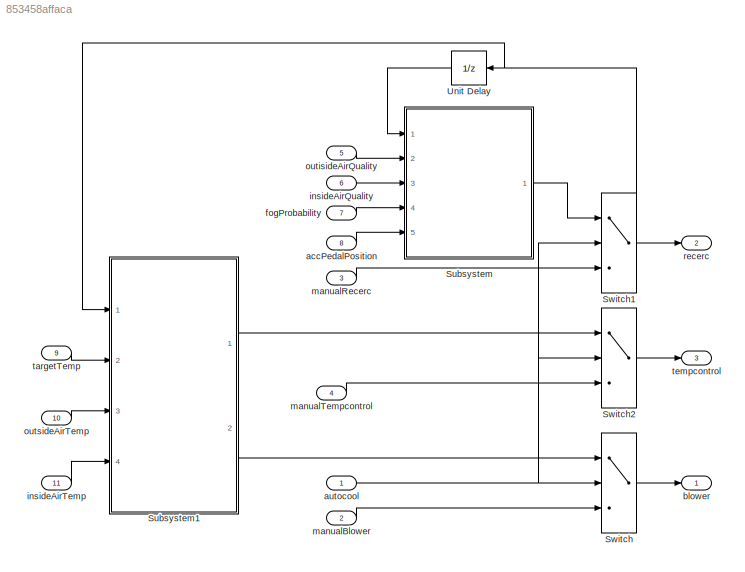
MODEL slx_853458affaca
KIND model
CONFIG AbsTol = auto
CONFIG EnableMultiTasking = off
CONFIG FixedStep = auto
CONFIG MaxStep = auto
CONFIG MinStep = auto
CONFIG RelTol = 1e-3
CONFIG SampleTimeConstraint = Unconstrained
CONFIG Solver = FixedStepAuto
CONFIG SolverName = FixedStepAuto
CONFIG StartTime = 0.0
CONFIG StopTime = 100
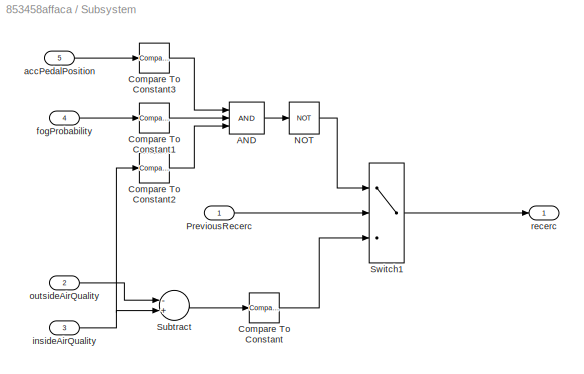
BLOCK [SubSystem] Subsystem
  Ports = [5, 1]
  RequestExecContextInheritance = off
BLOCK [Logic] Subsystem/AND
  AllPortsSameDT = off
  Inputs = 3
  OutDataTypeStr = boolean
  Ports = [3, 1]
BLOCK [Reference] Subsystem/Compare To Constant  REF=simulink/Logic and Bit
Operations/Compare
To Constant
  Ports = [1, 1]
  SourceBlock = simulink/Logic and Bit\nOperations/Compare\nTo Constant
  SourceProductBaseCode = SL
  SourceProductName = Simulink
  SourceType = Compare To Constant
BLOCK [Reference] Subsystem/Compare To Constant1  REF=simulink/Logic and Bit
Operations/Compare
To Constant
  Ports = [1, 1]
  SourceBlock = simulink/Logic and Bit\nOperations/Compare\nTo Constant
  SourceProductBaseCode = SL
  SourceProductName = Simulink
  SourceType = Compare To Constant
BLOCK [Reference] Subsystem/Compare To Constant2  REF=simulink/Logic and Bit
Operations/Compare
To Constant
  Ports = [1, 1]
  SourceBlock = simulink/Logic and Bit\nOperations/Compare\nTo Constant
  SourceProductBaseCode = SL
  SourceProductName = Simulink
  SourceType = Compare To Constant
BLOCK [Reference] Subsystem/Compare To Constant3  REF=simulink/Logic and Bit
Operations/Compare
To Constant
  Ports = [1, 1]
  SourceBlock = simulink/Logic and Bit\nOperations/Compare\nTo Constant
  SourceProductBaseCode = SL
  SourceProductName = Simulink
  SourceType = Compare To Constant
BLOCK [Logic] Subsystem/NOT
  AllPortsSameDT = off
  Operator = NOT
  OutDataTypeStr = boolean
  Ports = [1, 1]
BLOCK [Inport] Subsystem/PreviousRecerc
  IconDisplay = Port number
BLOCK [Sum] Subsystem/Subtract
  InputSameDT = off
  Inputs = -+
  OutDataTypeStr = Inherit: Inherit via internal rule
  Ports = [2, 1]
  SaturateOnIntegerOverflow = off
BLOCK [Switch] Subsystem/Switch1
  Criteria = u2 ~= 0
  InputSameDT = off
  SaturateOnIntegerOverflow = off
BLOCK [Inport] Subsystem/accPedalPosition
  IconDisplay = Port number
  Port = 5
BLOCK [Inport] Subsystem/fogProbability
  IconDisplay = Port number
  Port = 4
BLOCK [Inport] Subsystem/insideAirQuality
  IconDisplay = Port number
  Port = 3
BLOCK [Inport] Subsystem/outsideAirQuality
  IconDisplay = Port number
  Port = 2
BLOCK [Outport] Subsystem/recerc
  IconDisplay = Port number
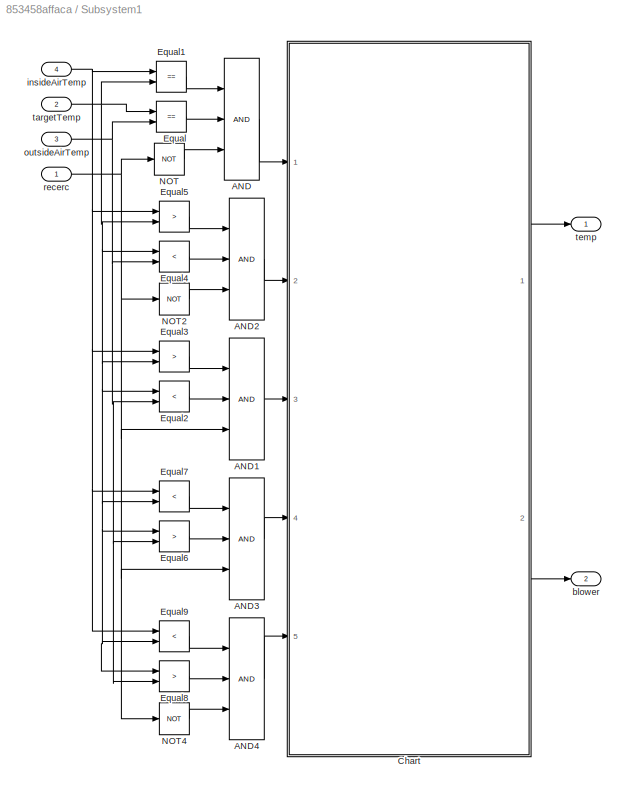
BLOCK [SubSystem] Subsystem1
  Ports = [4, 2]
  RequestExecContextInheritance = off
BLOCK [Logic] Subsystem1/AND
  AllPortsSameDT = off
  Inputs = 3
  OutDataTypeStr = boolean
  Ports = [3, 1]
BLOCK [Logic] Subsystem1/AND1
  AllPortsSameDT = off
  Inputs = 3
  OutDataTypeStr = boolean
  Ports = [3, 1]
BLOCK [Logic] Subsystem1/AND2
  AllPortsSameDT = off
  Inputs = 3
  OutDataTypeStr = boolean
  Ports = [3, 1]
BLOCK [Logic] Subsystem1/AND3
  AllPortsSameDT = off
  Inputs = 3
  OutDataTypeStr = boolean
  Ports = [3, 1]
BLOCK [Logic] Subsystem1/AND4
  AllPortsSameDT = off
  Inputs = 3
  OutDataTypeStr = boolean
  Ports = [3, 1]
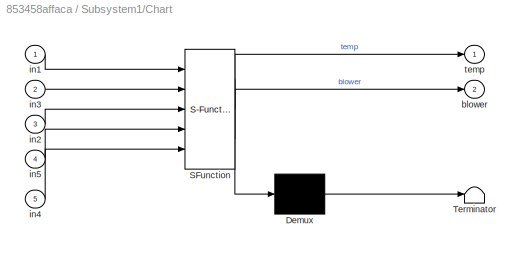
BLOCK [SubSystem] Subsystem1/Chart
  BlockKeywords = __PRM__SERIALIZED__DATA__:Stateflow Chart,Stateflow Diagram
  ErrorFcn = Stateflow.Translate.translate
  PermitHierarchicalResolution = ExplicitOnly
  Ports = [5, 2]
  RequestExecContextInheritance = off
  SFBlockType = Chart
  TreatAsAtomicUnit = on
BLOCK [Demux] Subsystem1/Chart/ Demux 
  Outputs = 1
  Ports = [1, 1]
BLOCK [S-Function] Subsystem1/Chart/ SFunction 
  EnableBusSupport = on
  FunctionName = sf_sfun
  PortCounts = [5 3]
  Ports = [5, 3]
  SFcnIsStateOwnerBlock = off
  SFunctionDeploymentMode = off
  Tag = Stateflow S-Function req17 3
BLOCK [Terminator] Subsystem1/Chart/ Terminator 
BLOCK [Outport] Subsystem1/Chart/blower
  IconDisplay = Port number
  Port = 2
BLOCK [Inport] Subsystem1/Chart/in1
  IconDisplay = Port number
BLOCK [Inport] Subsystem1/Chart/in2
  IconDisplay = Port number
  Port = 3
BLOCK [Inport] Subsystem1/Chart/in3
  IconDisplay = Port number
  Port = 2
BLOCK [Inport] Subsystem1/Chart/in4
  IconDisplay = Port number
  Port = 5
BLOCK [Inport] Subsystem1/Chart/in5
  IconDisplay = Port number
  Port = 4
BLOCK [Outport] Subsystem1/Chart/temp
  IconDisplay = Port number
BLOCK [RelationalOperator] Subsystem1/Equal
  InputSameDT = off
  Operator = ==
  OutDataTypeStr = boolean
  Ports = [2, 1]
  RndMeth = Simplest
BLOCK [RelationalOperator] Subsystem1/Equal1
  InputSameDT = off
  Operator = ==
  OutDataTypeStr = boolean
  Ports = [2, 1]
  RndMeth = Simplest
BLOCK [RelationalOperator] Subsystem1/Equal2
  InputSameDT = off
  Operator = <
  OutDataTypeStr = boolean
  Ports = [2, 1]
  RndMeth = Simplest
BLOCK [RelationalOperator] Subsystem1/Equal3
  InputSameDT = off
  Operator = >
  OutDataTypeStr = boolean
  Ports = [2, 1]
  RndMeth = Simplest
BLOCK [RelationalOperator] Subsystem1/Equal4
  InputSameDT = off
  Operator = <
  OutDataTypeStr = boolean
  Ports = [2, 1]
  RndMeth = Simplest
BLOCK [RelationalOperator] Subsystem1/Equal5
  InputSameDT = off
  Operator = >
  OutDataTypeStr = boolean
  Ports = [2, 1]
  RndMeth = Simplest
BLOCK [RelationalOperator] Subsystem1/Equal6
  InputSameDT = off
  Operator = >
  OutDataTypeStr = boolean
  Ports = [2, 1]
  RndMeth = Simplest
BLOCK [RelationalOperator] Subsystem1/Equal7
  InputSameDT = off
  Operator = <
  OutDataTypeStr = boolean
  Ports = [2, 1]
  RndMeth = Simplest
BLOCK [RelationalOperator] Subsystem1/Equal8
  InputSameDT = off
  Operator = >
  OutDataTypeStr = boolean
  Ports = [2, 1]
  RndMeth = Simplest
BLOCK [RelationalOperator] Subsystem1/Equal9
  InputSameDT = off
  Operator = <
  OutDataTypeStr = boolean
  Ports = [2, 1]
  RndMeth = Simplest
BLOCK [Logic] Subsystem1/NOT
  AllPortsSameDT = off
  Operator = NOT
  OutDataTypeStr = boolean
  Ports = [1, 1]
BLOCK [Logic] Subsystem1/NOT2
  AllPortsSameDT = off
  Operator = NOT
  OutDataTypeStr = boolean
  Ports = [1, 1]
BLOCK [Logic] Subsystem1/NOT4
  AllPortsSameDT = off
  Operator = NOT
  OutDataTypeStr = boolean
  Ports = [1, 1]
BLOCK [Outport] Subsystem1/blower
  IconDisplay = Port number
  Port = 2
BLOCK [Inport] Subsystem1/insideAirTemp
  IconDisplay = Port number
  Port = 4
BLOCK [Inport] Subsystem1/outsideAirTemp
  IconDisplay = Port number
  Port = 3
BLOCK [Inport] Subsystem1/recerc
  IconDisplay = Port number
BLOCK [Inport] Subsystem1/targetTemp
  IconDisplay = Port number
  Port = 2
BLOCK [Outport] Subsystem1/temp
  IconDisplay = Port number
BLOCK [Switch] Switch
  Criteria = u2 ~= 0
  InputSameDT = off
  SaturateOnIntegerOverflow = off
BLOCK [Switch] Switch1
  Criteria = u2 ~= 0
  InputSameDT = off
  SaturateOnIntegerOverflow = off
BLOCK [Switch] Switch2
  Criteria = u2 ~= 0
  InputSameDT = off
  SaturateOnIntegerOverflow = off
BLOCK [UnitDelay] Unit Delay
  HasFrameUpgradeWarning = on
  SampleTime = -1
BLOCK [Inport] accPedalPosition
  IconDisplay = Port number
  Port = 8
BLOCK [Inport] autocool
  IconDisplay = Port number
BLOCK [Outport] blower
  IconDisplay = Port number
BLOCK [Inport] fogProbability
  IconDisplay = Port number
  Port = 7
BLOCK [Inport] insideAirQuality
  IconDisplay = Port number
  Port = 6
BLOCK [Inport] insideAirTemp
  IconDisplay = Port number
  Port = 11
BLOCK [Inport] manualBlower
  IconDisplay = Port number
  Port = 2
BLOCK [Inport] manualRecerc
  IconDisplay = Port number
  Port = 3
BLOCK [Inport] manualTempcontrol
  IconDisplay = Port number
  Port = 4
BLOCK [Inport] outisideAirQuality
  IconDisplay = Port number
  Port = 5
BLOCK [Inport] outsideAirTemp
  IconDisplay = Port number
  Port = 10
BLOCK [Outport] recerc
  IconDisplay = Port number
  Port = 2
BLOCK [Inport] targetTemp
  IconDisplay = Port number
  Port = 9
BLOCK [Outport] tempcontrol
  IconDisplay = Port number
  Port = 3
LINE Subsystem/AND:1 -> Subsystem/NOT:1
LINE Subsystem/Compare To Constant1:1 -> Subsystem/AND:2
LINE Subsystem/Compare To Constant2:1 -> Subsystem/AND:3
LINE Subsystem/Compare To Constant3:1 -> Subsystem/AND:1
LINE Subsystem/Compare To Constant:1 -> Subsystem/Switch1:3
LINE Subsystem/NOT:1 -> Subsystem/Switch1:1
LINE Subsystem/PreviousRecerc:1 -> Subsystem/Switch1:2
LINE Subsystem/Subtract:1 -> Subsystem/Compare To Constant:1
LINE Subsystem/Switch1:1 -> Subsystem/recerc:1
LINE Subsystem/accPedalPosition:1 -> Subsystem/Compare To Constant3:1
LINE Subsystem/fogProbability:1 -> Subsystem/Compare To Constant1:1
NET Subsystem/insideAirQuality:1 -> Subsystem/Compare To Constant2:1, Subsystem/Subtract:2
LINE Subsystem/outsideAirQuality:1 -> Subsystem/Subtract:1
LINE Subsystem1/AND1:1 -> Subsystem1/Chart:3
LINE Subsystem1/AND2:1 -> Subsystem1/Chart:2
LINE Subsystem1/AND3:1 -> Subsystem1/Chart:4
LINE Subsystem1/AND4:1 -> Subsystem1/Chart:5
LINE Subsystem1/AND:1 -> Subsystem1/Chart:1
LINE Subsystem1/Chart:1 -> Subsystem1/temp:1
LINE Subsystem1/Chart:2 -> Subsystem1/blower:1
LINE Subsystem1/Equal1:1 -> Subsystem1/AND:1
LINE Subsystem1/Equal2:1 -> Subsystem1/AND1:2
LINE Subsystem1/Equal3:1 -> Subsystem1/AND1:1
LINE Subsystem1/Equal4:1 -> Subsystem1/AND2:2
LINE Subsystem1/Equal5:1 -> Subsystem1/AND2:1
LINE Subsystem1/Equal6:1 -> Subsystem1/AND3:2
LINE Subsystem1/Equal7:1 -> Subsystem1/AND3:1
LINE Subsystem1/Equal8:1 -> Subsystem1/AND4:2
LINE Subsystem1/Equal9:1 -> Subsystem1/AND4:1
LINE Subsystem1/Equal:1 -> Subsystem1/AND:2
LINE Subsystem1/NOT2:1 -> Subsystem1/AND2:3
LINE Subsystem1/NOT4:1 -> Subsystem1/AND4:3
LINE Subsystem1/NOT:1 -> Subsystem1/AND:3
NET Subsystem1/insideAirTemp:1 -> Subsystem1/Equal1:1, Subsystem1/Equal3:1, Subsystem1/Equal5:1, Subsystem1/Equal7:1, Subsystem1/Equal9:1
NET Subsystem1/outsideAirTemp:1 -> Subsystem1/Equal2:2, Subsystem1/Equal4:2, Subsystem1/Equal6:2, Subsystem1/Equal8:2, Subsystem1/Equal:2
NET Subsystem1/recerc:1 -> Subsystem1/AND1:3, Subsystem1/AND3:3, Subsystem1/NOT2:1, Subsystem1/NOT4:1, Subsystem1/NOT:1
NET Subsystem1/targetTemp:1 -> Subsystem1/Equal1:2, Subsystem1/Equal2:1, Subsystem1/Equal3:2, Subsystem1/Equal4:1, Subsystem1/Equal5:2, Subsystem1/Equal6:1, Subsystem1/Equal7:2, Subsystem1/Equal8:1, Subsystem1/Equal9:2, Subsystem1/Equal:1
LINE Subsystem1:1 -> Switch2:1
LINE Subsystem1:2 -> Switch:1
LINE Subsystem:1 -> Switch1:1
NET Switch1:1 -> Subsystem1:1, Unit Delay:1, recerc:1
LINE Switch2:1 -> tempcontrol:1
LINE Switch:1 -> blower:1
LINE Unit Delay:1 -> Subsystem:1
LINE accPedalPosition:1 -> Subsystem:5
NET autocool:1 -> Switch1:2, Switch2:2, Switch:2
LINE fogProbability:1 -> Subsystem:4
LINE insideAirQuality:1 -> Subsystem:3
LINE insideAirTemp:1 -> Subsystem1:4
LINE manualBlower:1 -> Switch:3
LINE manualRecerc:1 -> Switch1:3
LINE manualTempcontrol:1 -> Switch2:3
LINE outisideAirQuality:1 -> Subsystem:2
LINE outsideAirTemp:1 -> Subsystem1:3
LINE targetTemp:1 -> Subsystem1:2
note: NET lines group one-source signal fan-out (src -> all destinations, sorted); 1:1 wires keep LINE
CHART Subsystem1/Chart states=6 transitions=11
  STATE_LABEL 'state1\nblower=2;\ntemp=50;'
  STATE_LABEL 'transition'
  STATE_LABEL 'state2\nblower=3;\ntemp=0'
  STATE_LABEL 'state3\nblower=1;\ntemp=0'
  STATE_LABEL 'state4\nblower=1;\ntemp=100'
  STATE_LABEL 'state5\nblower=3;\ntemp=100'
